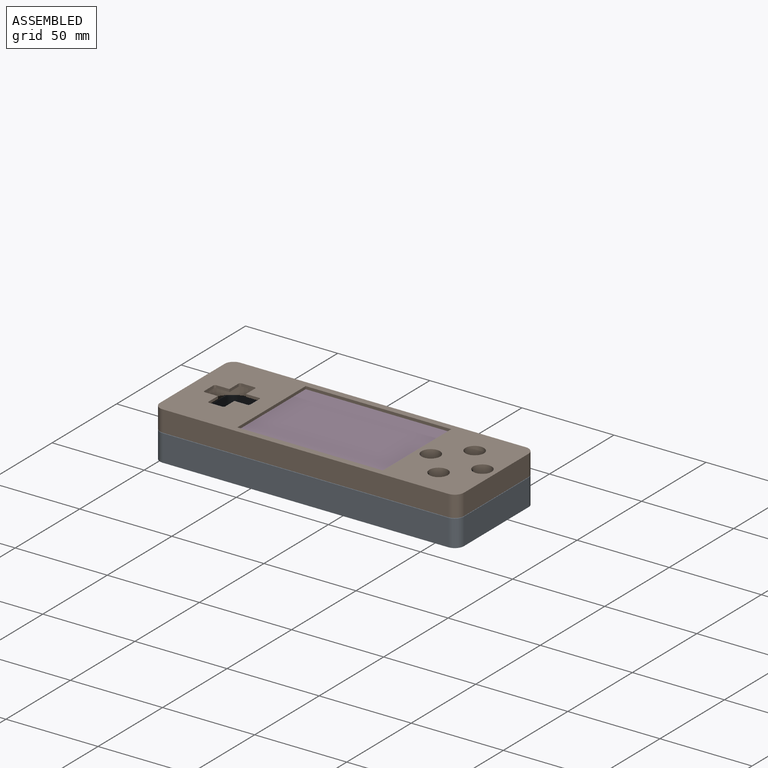
[diagram: assembled view]
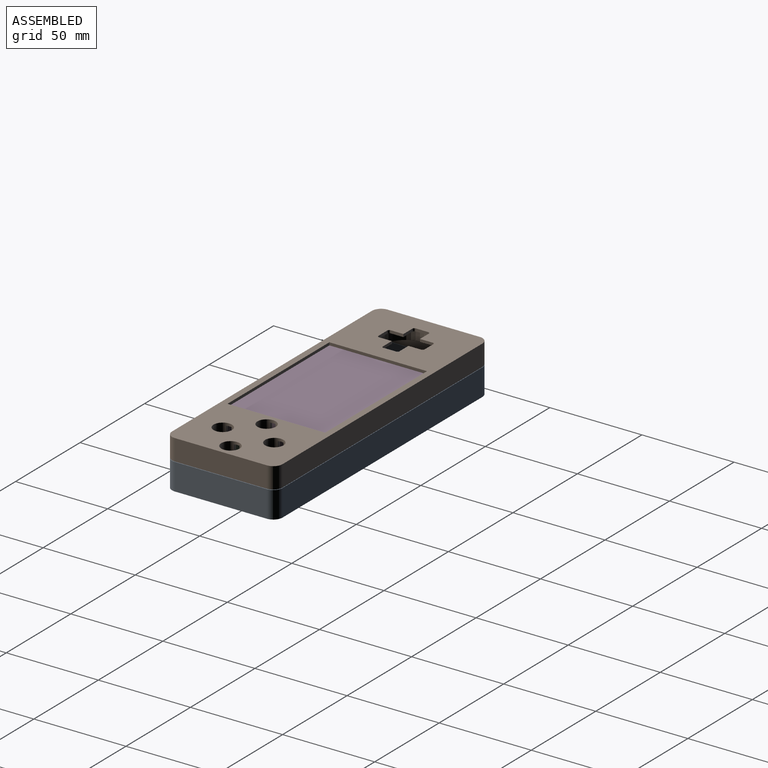
[diagram: assembled view, second angle]
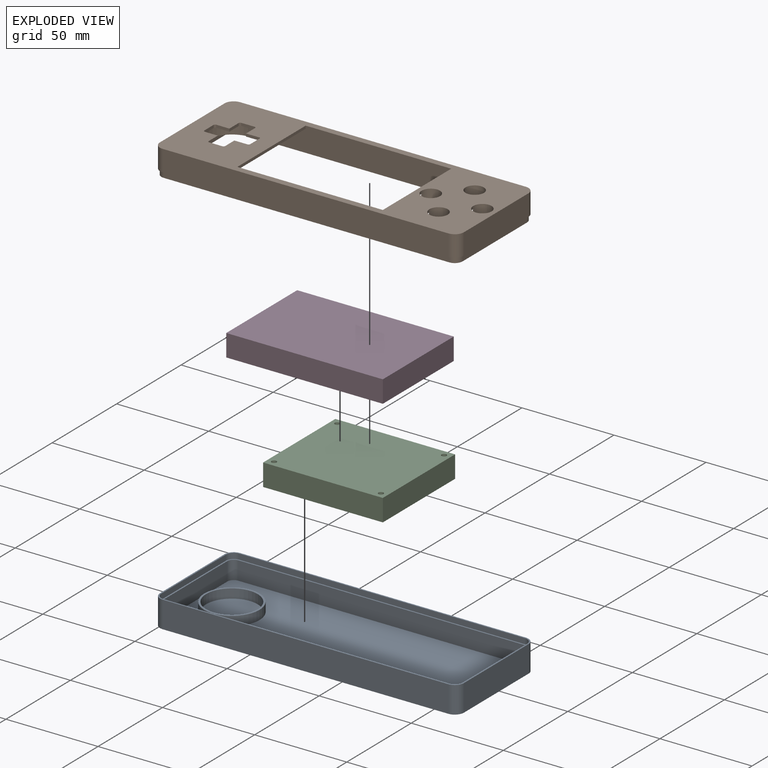
[diagram: exploded view]
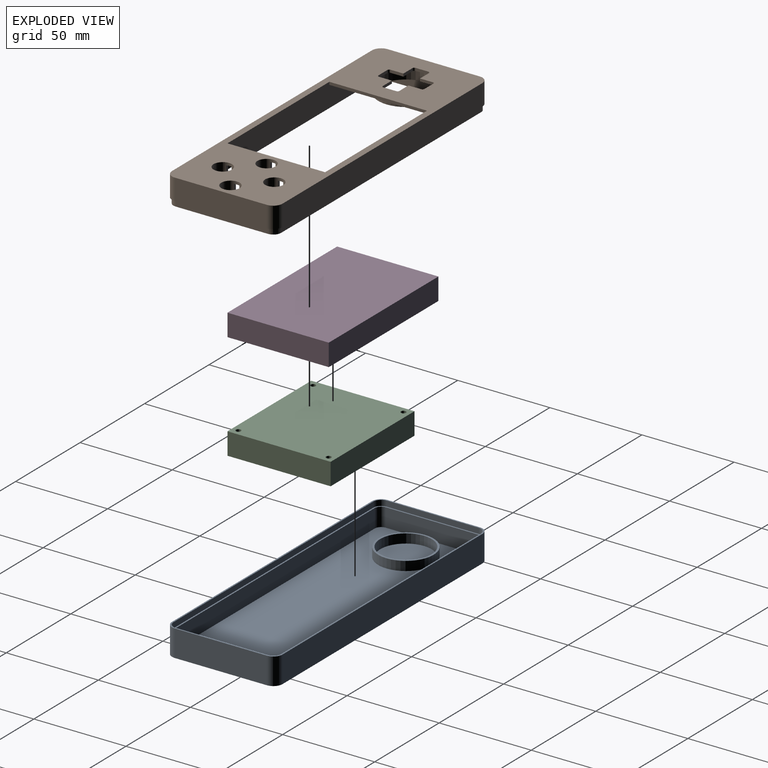
[diagram: exploded view, second angle]
ASSEMBLY  parts=4 mates=9
PART A: 32 faces, bbox 165x60x14.5 mm
  f0: plane 50x10mm, normal (-1,0,0), area 500mm2, adj f1,f7,f8,f13
  f1: cylinder r=3.5mm len=10mm, axis (0,0,-1), area 55mm2, adj f0,f2,f8,f13
  f2: plane 155x10mm, normal (0,-1,0), area 1550mm2, adj f1,f3,f8,f13
  f3: cylinder r=3.5mm len=10mm, axis (0,0,-1), area 55mm2, adj f2,f4,f8,f13
  f4: plane 50x10mm, normal (1,0,0), area 500mm2, adj f3,f5,f8,f13
  f5: cylinder r=3.5mm len=10mm, axis (0,0,-1), area 55mm2, adj f4,f6,f8,f13
  f6: plane 155x10mm, normal (0,1,0), area 1550mm2, adj f5,f7,f8,f13
  f7: cylinder r=3.5mm len=10mm, axis (0,0,-1), area 55mm2, adj f0,f6,f8,f13
  f8: plane 162x57mm, normal (0,0,-1), area 8516.6mm2, adj f0,f1,f2,f3,f4,f5,f6,f7
  f9: cylinder r=14mm len=28mm, axis (0,0,1), area 439.8mm2, adj f11,f12
  f10: cylinder r=15mm len=30mm, axis (0,0,1), area 471.2mm2, adj f8,f11
  f11: plane 30x30mm, normal (0,0,-1), area 91.1mm2, adj f9,f10
  f12: plane 28x28mm, normal (0,0,-1), area 615.8mm2, adj f9
  f13: plane 163.5x58.5mm, normal (0,0,-1), area 325.8mm2, adj f0,f1,f2,f3,f4,f5,f6,f7
  f14: plane 155x3mm, normal (0,1,0), area 465mm2, adj f13,f15,f21,f31
  f15: cylinder r=4.25mm len=4.25mm, axis (0,0,-1), area 20mm2, adj f13,f14,f16,f31
  f16: plane 50x3mm, normal (1,0,0), area 150mm2, adj f13,f15,f17,f31
  f17: cylinder r=4.25mm len=4.25mm, axis (0,0,-1), area 20mm2, adj f13,f16,f18,f31
  f18: plane 155x3mm, normal (0,-1,0), area 465mm2, adj f13,f17,f19,f31
  f19: cylinder r=4.25mm len=4.25mm, axis (0,0,-1), area 20mm2, adj f13,f18,f20,f31
  f20: plane 50x3mm, normal (-1,0,0), area 150mm2, adj f13,f19,f21,f31
  f21: cylinder r=4.25mm len=4.25mm, axis (0,0,-1), area 20mm2, adj f13,f14,f20,f31
  f22: plane 165x60mm, normal (0,0,1), area 9878.5mm2, adj f23,f24,f25,f26,f27,f28,f29,f30
  f23: cylinder r=5mm len=14.5mm, axis (0,0,-1), area 113.9mm2, adj f22,f24,f30,f31
  f24: plane 155x14.5mm, normal (0,1,0), area 2247.5mm2, adj f22,f23,f25,f31
  f25: cylinder r=5mm len=14.5mm, axis (0,0,-1), area 113.9mm2, adj f22,f24,f26,f31
  f26: plane 50x14.5mm, normal (-1,0,0), area 725mm2, adj f22,f25,f27,f31
  f27: cylinder r=5mm len=14.5mm, axis (0,0,-1), area 113.9mm2, adj f22,f26,f28,f31
  f28: plane 155x14.5mm, normal (0,-1,0), area 2247.5mm2, adj f22,f27,f29,f31
  f29: cylinder r=5mm len=14.5mm, axis (0,0,-1), area 113.9mm2, adj f22,f28,f30,f31
  f30: plane 50x14.5mm, normal (1,0,0), area 725mm2, adj f22,f23,f29,f31
  f31: plane 165x60mm, normal (0,0,-1), area 329.3mm2, adj f14,f15,f16,f17,f18,f19,f20,f21
PART B: 95 faces, bbox 165x60x14.5 mm
  f0: plane 163.5x58.5mm, normal (0,0,-1), area 325.8mm2, adj f30,f31,f32,f33,f34,f35,f36,f37
  f1: plane 28x28mm, normal (0,0,-1), area 248.5mm2, adj f44,f45,f46,f47,f48,f49,f50,f51
  f2: cylinder r=6.5mm len=12.65mm, axis (0,0,1), area 60.9mm2, adj f4,f13,f74,f76
  f3: cylinder r=6.5mm len=12.65mm, axis (0,0,1), area 60.9mm2, adj f13,f38,f75,f77
  f4: plane 12.65x5mm, normal (0,0,-1), area 22.5mm2, adj f2,f26,f74,f76
  f5: cylinder r=6.5mm len=12.32mm, axis (0,0,1), area 57.2mm2, adj f13,f30,f40,f73
  f6: plane 12.32x5mm, normal (0,0,-1), area 22.4mm2, adj f27,f30,f39,f72,f80
  f7: cylinder r=6.5mm len=12.65mm, axis (0,0,1), area 60.9mm2, adj f13,f42,f69,f70
  f8: plane 12.65x5mm, normal (0,0,-1), area 22.5mm2, adj f28,f41,f68,f71
  f9: cylinder r=6.5mm len=12.65mm, axis (0,0,1), area 60.9mm2, adj f11,f13,f64,f66
  f10: cylinder r=6.5mm len=12.65mm, axis (0,0,1), area 60.9mm2, adj f13,f43,f65,f67
  f11: plane 12.65x5mm, normal (0,0,-1), area 22.5mm2, adj f9,f29,f64,f66
  f12: plane 165x60mm, normal (0,0,1), area 5010.1mm2, adj f14,f15,f16,f17,f18,f19,f20,f21
  f13: plane 162x57mm, normal (0,0,-1), area 3832.3mm2, adj f2,f3,f5,f7,f9,f10,f14,f15
  f14: plane 79x1.5mm, normal (0,1,0), area 118.5mm2, adj f12,f13,f15,f17
  f15: plane 53x1.5mm, normal (1,0,0), area 79.5mm2, adj f12,f13,f14,f16
  f16: plane 79x1.5mm, normal (0,-1,0), area 118.5mm2, adj f12,f13,f15,f17
  f17: plane 53x1.5mm, normal (-1,0,0), area 79.5mm2, adj f12,f13,f14,f16
  f18: plane 50x11.5mm, normal (1,0,0), area 575mm2, adj f12,f19,f25,f94
  f19: cylinder r=5mm len=11.5mm, axis (0,0,-1), area 90.3mm2, adj f12,f18,f20,f94
  f20: plane 155x11.5mm, normal (0,1,0), area 1782.5mm2, adj f12,f19,f21,f94
  f21: cylinder r=5mm len=11.5mm, axis (0,0,-1), area 90.3mm2, adj f12,f20,f22,f94
  f22: plane 50x11.5mm, normal (-1,0,0), area 575mm2, adj f12,f21,f23,f94
  f23: cylinder r=5mm len=11.5mm, axis (0,0,-1), area 90.3mm2, adj f12,f22,f24,f94
  f24: plane 155x11.5mm, normal (0,-1,0), area 1782.5mm2, adj f12,f23,f25,f94
  f25: cylinder r=5mm len=11.5mm, axis (0,0,-1), area 90.3mm2, adj f12,f18,f24,f94
  f26: cylinder r=5mm len=10mm, axis (0,0,1), area 135.8mm2, adj f4,f12,f13,f38,f74,f75,f76,f77
  f27: cylinder r=5mm len=10mm, axis (0,0,1), area 135.8mm2, adj f6,f12,f13,f40,f72,f73,f79,f80
  f28: cylinder r=5mm len=10mm, axis (0,0,1), area 135.8mm2, adj f8,f12,f13,f42,f68,f69,f70,f71
  f29: cylinder r=5mm len=10mm, axis (0,0,1), area 135.8mm2, adj f11,f12,f13,f43,f64,f65,f66,f67
  f30: plane 50x13mm, normal (-1,0,0), area 632.5mm2, adj f0,f5,f6,f13,f31,f37,f39,f40
  f31: cylinder r=3.5mm len=13mm, axis (0,0,-1), area 71.5mm2, adj f0,f13,f30,f32
  f32: plane 155x13mm, normal (0,-1,0), area 2015mm2, adj f0,f13,f31,f33
  f33: cylinder r=3.5mm len=13mm, axis (0,0,-1), area 71.5mm2, adj f0,f13,f32,f34
  f34: plane 50x13mm, normal (1,0,0), area 650mm2, adj f0,f13,f33,f35
  f35: cylinder r=3.5mm len=13mm, axis (0,0,-1), area 71.5mm2, adj f0,f13,f34,f36
  f36: plane 155x13mm, normal (0,1,0), area 2015mm2, adj f0,f13,f35,f37
  f37: cylinder r=3.5mm len=13mm, axis (0,0,-1), area 71.5mm2, adj f0,f13,f30,f36
  f38: plane 12.65x5mm, normal (0,0,-1), area 22.5mm2, adj f3,f26,f75,f77
  f39: cylinder r=6.5mm len=12.32mm, axis (0,0,1), area 57.2mm2, adj f6,f13,f30,f72
  f40: plane 12.32x5mm, normal (0,0,-1), area 22.4mm2, adj f5,f27,f30,f73,f81
  f41: cylinder r=6.5mm len=12.65mm, axis (0,0,1), area 60.9mm2, adj f8,f13,f68,f71
  f42: plane 12.65x5mm, normal (0,0,-1), area 22.5mm2, adj f7,f28,f69,f70
  f43: plane 12.65x5mm, normal (0,0,-1), area 22.5mm2, adj f10,f29,f65,f67
  f44: plane 7x1.5mm, normal (-1,0,0), area 10.5mm2, adj f1,f12,f45,f63
  f45: cylinder r=1mm len=1.5mm, axis (0,0,1), area 2.4mm2, adj f1,f12,f44,f46
  f46: plane 7x1.5mm, normal (0,-1,0), area 10.5mm2, adj f1,f12,f45,f47
  f47: cylinder r=1mm len=1.5mm, axis (0,0,1), area 2.4mm2, adj f1,f12,f46,f48
  f48: plane 7x1.5mm, normal (1,0,0), area 10.5mm2, adj f1,f12,f47,f49
  f49: plane 7x1.5mm, normal (0,-1,0), area 10.5mm2, adj f1,f12,f48,f50
  f50: cylinder r=1mm len=1.5mm, axis (0,0,1), area 2.4mm2, adj f1,f12,f49,f51
  f51: plane 7x1.5mm, normal (1,0,0), area 10.5mm2, adj f1,f12,f50,f52
  f52: cylinder r=1mm len=1.5mm, axis (0,0,1), area 2.4mm2, adj f1,f12,f51,f53
  f53: plane 7x1.5mm, normal (0,1,0), area 10.5mm2, adj f1,f12,f52,f54
  f54: plane 7x1.5mm, normal (1,0,0), area 10.5mm2, adj f1,f12,f53,f55
  f55: cylinder r=1mm len=1.5mm, axis (0,0,1), area 2.4mm2, adj f1,f12,f54,f56
  f56: plane 7x1.5mm, normal (0,1,0), area 10.5mm2, adj f1,f12,f55,f57
  f57: cylinder r=1mm len=1.5mm, axis (0,0,1), area 2.4mm2, adj f1,f12,f56,f58
  f58: plane 7x1.5mm, normal (-1,0,0), area 10.5mm2, adj f1,f12,f57,f59
  f59: plane 7x1.5mm, normal (0,1,0), area 10.5mm2, adj f1,f12,f58,f60
  f60: cylinder r=1mm len=1.5mm, axis (0,0,1), area 2.4mm2, adj f1,f12,f59,f61
  f61: plane 7x1.5mm, normal (-1,0,0), area 10.5mm2, adj f1,f12,f60,f62
  f62: cylinder r=1mm len=1.5mm, axis (0,0,1), area 2.4mm2, adj f1,f12,f61,f63
  f63: plane 7x1.5mm, normal (0,-1,0), area 10.5mm2, adj f1,f12,f44,f62
  f64: plane 3.5x1.56mm, normal (0,1,0), area 5.4mm2, adj f9,f11,f13,f29
  f65: plane 3.5x1.56mm, normal (0,-1,0), area 5.4mm2, adj f10,f13,f29,f43
  f66: plane 3.5x1.56mm, normal (0,1,0), area 5.4mm2, adj f9,f11,f13,f29
  f67: plane 3.5x1.56mm, normal (0,-1,0), area 5.4mm2, adj f10,f13,f29,f43
  f68: plane 3.5x1.56mm, normal (0,1,0), area 5.4mm2, adj f8,f13,f28,f41
  f69: plane 3.5x1.56mm, normal (0,-1,0), area 5.4mm2, adj f7,f13,f28,f42
  f70: plane 3.5x1.56mm, normal (0,-1,0), area 5.4mm2, adj f7,f13,f28,f42
  f71: plane 3.5x1.56mm, normal (0,1,0), area 5.4mm2, adj f8,f13,f28,f41
  f72: plane 3.5x1.56mm, normal (0,1,0), area 5.4mm2, adj f6,f13,f27,f39
  f73: plane 3.5x1.56mm, normal (0,-1,0), area 5.4mm2, adj f5,f13,f27,f40
  f74: plane 3.5x1.56mm, normal (0,1,0), area 5.4mm2, adj f2,f4,f13,f26
  f75: plane 3.5x1.56mm, normal (0,-1,0), area 5.4mm2, adj f3,f13,f26,f38
  f76: plane 3.5x1.56mm, normal (0,1,0), area 5.4mm2, adj f2,f4,f13,f26
  f77: plane 3.5x1.56mm, normal (0,-1,0), area 5.4mm2, adj f3,f13,f26,f38
  f78: plane 3x0.02mm, normal (0,0,1), area 0.1mm2, adj f30,f80,f81,f82
  f79: plane 3x1.25mm, normal (0,0,-1), area 3.3mm2, adj f27,f80,f81,f82
  f80: plane 3.5x1.25mm, normal (0,1,0), area 4.4mm2, adj f6,f27,f78,f79,f82
  f81: plane 3.5x1.25mm, normal (0,-1,0), area 4.4mm2, adj f27,f40,f78,f79,f82
  f82: plane 3.5x3mm, normal (-1,0,0), area 10.5mm2, adj f78,f79,f80,f81
  f83: cylinder r=14mm len=28mm, axis (0,0,1), area 439.8mm2, adj f1,f85
  f84: cylinder r=15mm len=30mm, axis (0,0,1), area 471.2mm2, adj f13,f85
  f85: plane 30x30mm, normal (0,0,-1), area 91.1mm2, adj f83,f84
  f86: cylinder r=4.25mm len=4.25mm, axis (0,0,-1), area 20mm2, adj f0,f87,f93,f94
  f87: plane 155x3mm, normal (0,-1,0), area 465mm2, adj f0,f86,f88,f94
  f88: cylinder r=4.25mm len=4.25mm, axis (0,0,-1), area 20mm2, adj f0,f87,f89,f94
  f89: plane 50x3mm, normal (1,0,0), area 150mm2, adj f0,f88,f90,f94
  f90: cylinder r=4.25mm len=4.25mm, axis (0,0,-1), area 20mm2, adj f0,f89,f91,f94
  f91: plane 155x3mm, normal (0,1,0), area 465mm2, adj f0,f90,f92,f94
  f92: cylinder r=4.25mm len=4.25mm, axis (0,0,-1), area 20mm2, adj f0,f91,f93,f94
  f93: plane 50x3mm, normal (-1,0,0), area 150mm2, adj f0,f86,f92,f94
  f94: plane 165x60mm, normal (0,0,-1), area 329.3mm2, adj f18,f19,f20,f21,f22,f23,f24,f25
PART C: 10 faces, bbox 65x56x12 mm
  f0: plane 56x12mm, normal (1,0,0), area 672mm2, adj f1,f3,f4,f5
  f1: plane 65x12mm, normal (0,1,0), area 780mm2, adj f0,f2,f4,f5
  f2: plane 56x12mm, normal (-1,0,0), area 672mm2, adj f1,f3,f4,f5
  f3: plane 65x12mm, normal (0,-1,0), area 780mm2, adj f0,f2,f4,f5
  f4: plane 65x56mm, normal (0,0,1), area 3616.2mm2, adj f0,f1,f2,f3,f6,f7,f8,f9
  f5: plane 65x56mm, normal (0,0,-1), area 3616.2mm2, adj f0,f1,f2,f3,f6,f7,f8,f9
  f6: cylinder r=1.38mm len=12mm, axis (0,0,1), area 103.7mm2, adj f4,f5
  f7: cylinder r=1.38mm len=12mm, axis (0,0,1), area 103.7mm2, adj f4,f5
  f8: cylinder r=1.38mm len=12mm, axis (0,0,1), area 103.7mm2, adj f4,f5
  f9: cylinder r=1.38mm len=12mm, axis (0,0,1), area 103.7mm2, adj f4,f5
PART D: 6 faces, bbox 85x55x12 mm
  f0: plane 55x12mm, normal (1,0,0), area 660mm2, adj f1,f3,f4,f5
  f1: plane 85x12mm, normal (0,1,0), area 1020mm2, adj f0,f2,f4,f5
  f2: plane 55x12mm, normal (-1,0,0), area 660mm2, adj f1,f3,f4,f5
  f3: plane 85x12mm, normal (0,-1,0), area 1020mm2, adj f0,f2,f4,f5
  f4: plane 85x55mm, normal (0,0,1), area 4675mm2, adj f0,f1,f2,f3
  f5: plane 85x55mm, normal (0,0,-1), area 4675mm2, adj f0,f1,f2,f3
PLACE A rot(axis=(-1,0,0),180deg) t=(-16.33,-7.18,7.36)mm
PLACE B t=(-16.33,-7.18,4.56)mm
PLACE C t=(-9.33,-5.68,-6.44)mm fixed
PLACE D t=(-19.33,-6.18,5.56)mm
MATE parallel D.f3 <-> C.f3  axis (0,-1,0) through (-19.33,-33.68,11.56)mm
MATE planar D.f3 <-> C.f3  axis (0,-1,0) through (-19.33,-33.68,11.56)mm
MATE slider A.f9 <-> B.f83  axis (0,0,1) through (-77.33,-7.18,-5.64)mm
MATE planar D.f4 <-> B.f13  axis (0,0,1) through (-19.33,-6.18,17.56)mm
MATE planar C.f4 <-> D.f5  axis (0,0,1) through (-9.33,-5.68,5.56)mm
MATE planar D.f0 <-> C.f0  axis (1,0,0) through (23.17,-6.18,11.56)mm
MATE planar B.f17 <-> D.f0  axis (-1,0,0) through (23.17,-7.18,18.31)mm
MATE parallel C.f2 <-> D.f2  axis (-1,0,0) through (-41.83,-5.68,-0.44)mm
MATE planar D.f1 <-> B.f32  axis (0,1,0) through (23.17,21.32,5.56)mm
